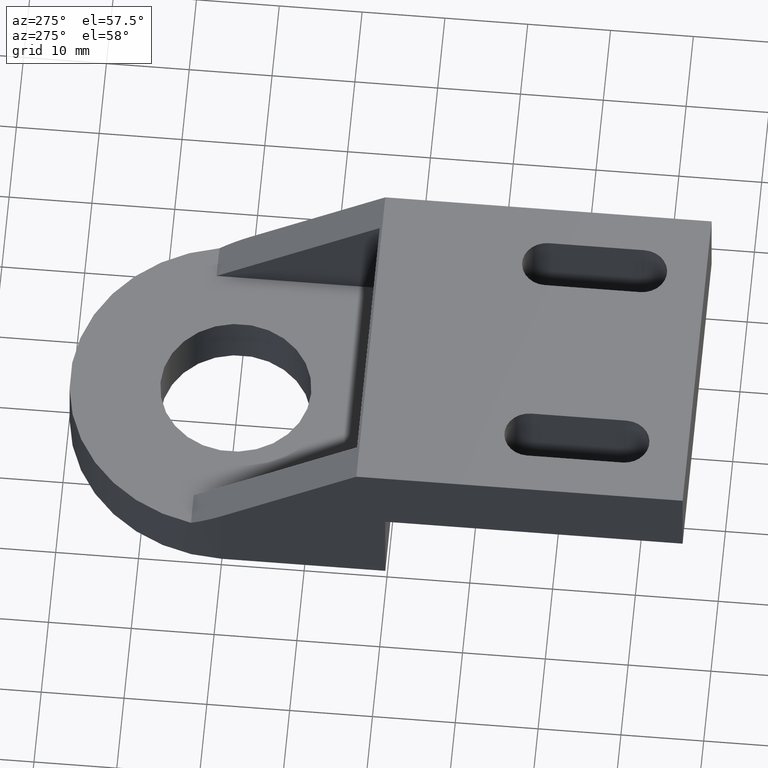
[diagram: clean part render]
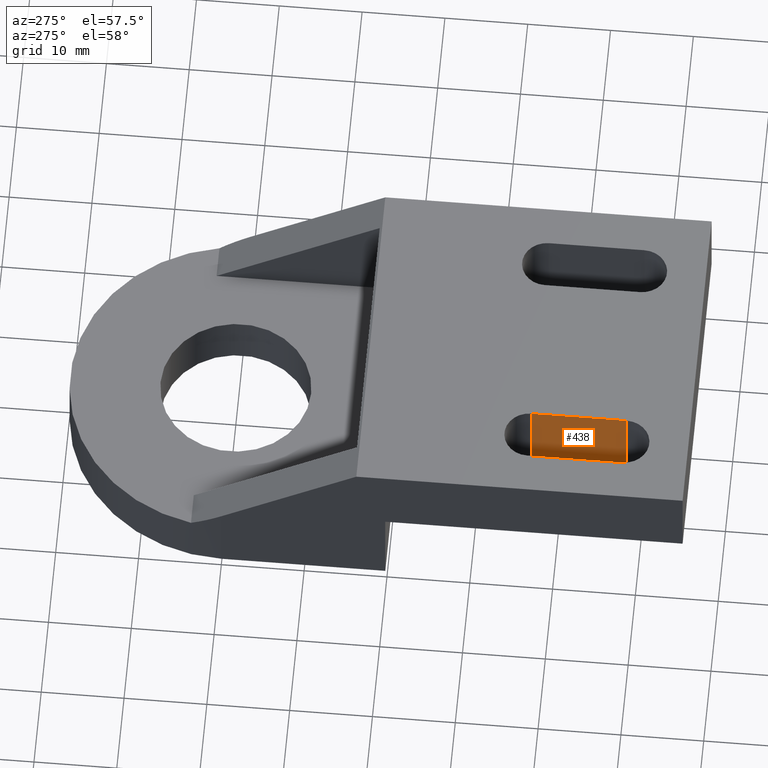
[diagram: same view with one face highlighted and labeled with its STEP entity id]
A machine part, auxiliary view. The second image highlights one B-rep face of the part: STEP entity #438.
In plain terms, the highlighted planar face has unit normal (-1, 0, 0).
Its self-contained STEP definition (entity closure, byte-faithful):
#60=FACE_OUTER_BOUND('',#88,.T.);
#88=EDGE_LOOP('',(#391,#392,#393,#394));
#111=LINE('',#675,#157);
#116=LINE('',#695,#162);
#133=LINE('',#733,#179);
#135=LINE('',#736,#181);
#157=VECTOR('',#545,11.4999999999827);
#162=VECTOR('',#564,11.4999999999827);
#179=VECTOR('',#607,9.59999999996126);
#181=VECTOR('',#611,9.59999999996126);
#204=VERTEX_POINT('',#669);
#206=VERTEX_POINT('',#673);
#213=VERTEX_POINT('',#692);
#214=VERTEX_POINT('',#694);
#251=EDGE_CURVE('',#204,#206,#111,.T.);
#260=EDGE_CURVE('',#213,#214,#116,.T.);
#279=EDGE_CURVE('',#204,#213,#133,.T.);
#281=EDGE_CURVE('',#206,#214,#135,.T.);
#391=ORIENTED_EDGE('',*,*,#251,.T.);
#392=ORIENTED_EDGE('',*,*,#281,.T.);
#393=ORIENTED_EDGE('',*,*,#260,.F.);
#394=ORIENTED_EDGE('',*,*,#279,.F.);
#417=PLANE('',#494);
#438=ADVANCED_FACE('',(#60),#417,.T.);
#494=AXIS2_PLACEMENT_3D('',#735,#609,#610);
#545=DIRECTION('',(0.,1.,0.));
#564=DIRECTION('',(0.,1.,0.));
#607=DIRECTION('',(0.,0.,-1.));
#609=DIRECTION('center_axis',(-1.,0.,0.));
#610=DIRECTION('ref_axis',(0.,0.,1.));
#611=DIRECTION('',(0.,0.,-1.));
#669=CARTESIAN_POINT('',(-9.19999999996253,-47.9999999998081,20.5999999999172));
#673=CARTESIAN_POINT('',(-9.19999999996253,-36.4999999998254,20.5999999999172));
#675=CARTESIAN_POINT('',(-9.19999999996253,-47.9999999998081,20.5999999999172));
#692=CARTESIAN_POINT('',(-9.19999999996253,-47.9999999998081,10.999999999956));
#694=CARTESIAN_POINT('',(-9.19999999996253,-36.4999999998254,10.999999999956));
#695=CARTESIAN_POINT('',(-9.19999999996253,-47.9999999998081,10.999999999956));
#733=CARTESIAN_POINT('',(-9.19999999996253,-47.9999999998081,20.5999999999172));
#735=CARTESIAN_POINT('Origin',(-9.19999999996253,-47.9999999998081,20.5999999999172));
#736=CARTESIAN_POINT('',(-9.19999999996253,-36.4999999998254,20.5999999999172));